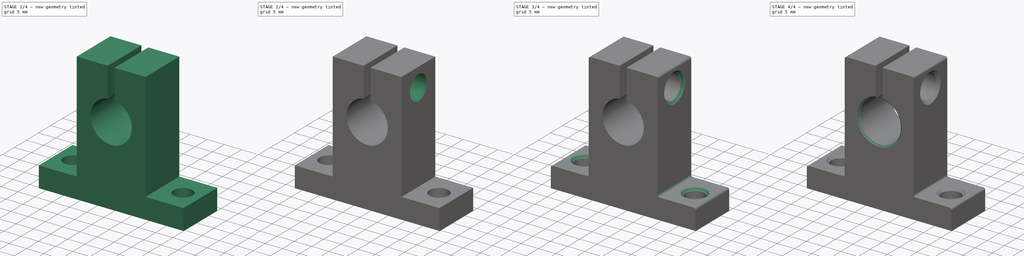
[diagram: build sequence overview — one tinted view per stage of 4, left to right]
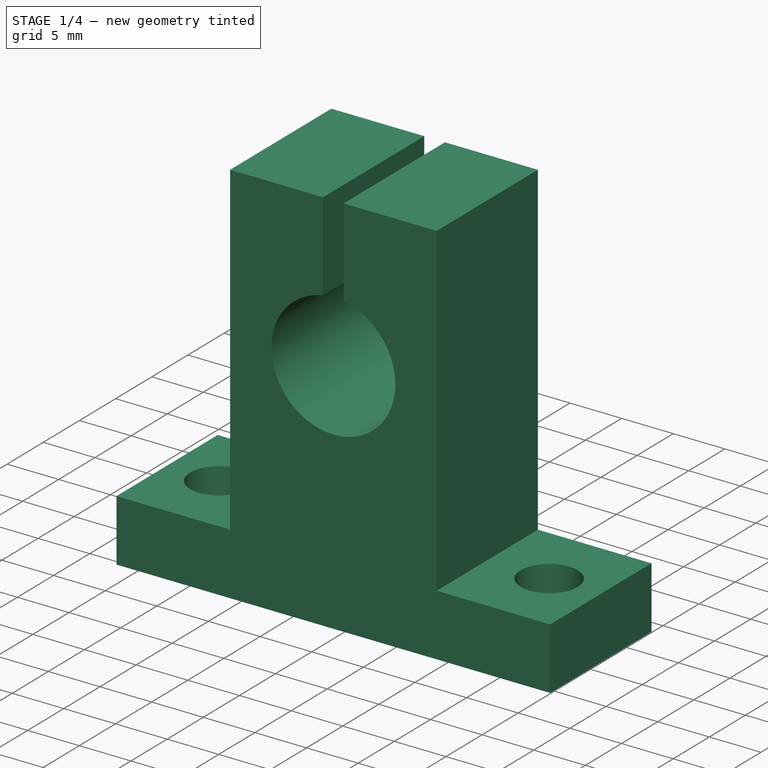
[diagram: stage 1 of 4 — iso view after this stage's code; geometry added in this stage tinted green]
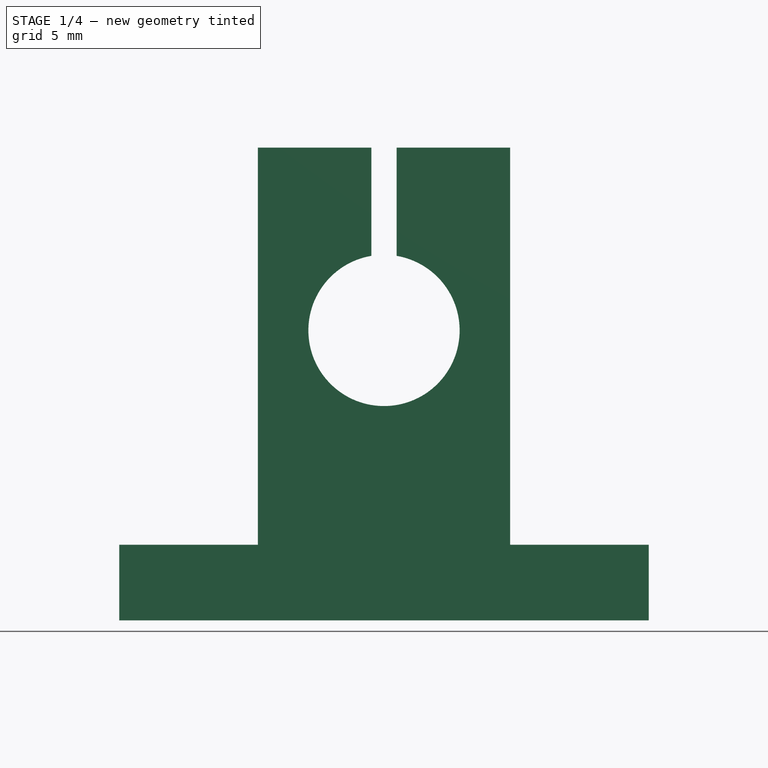
[diagram: stage 1 of 4 — front view after this stage's code; geometry added in this stage tinted green]
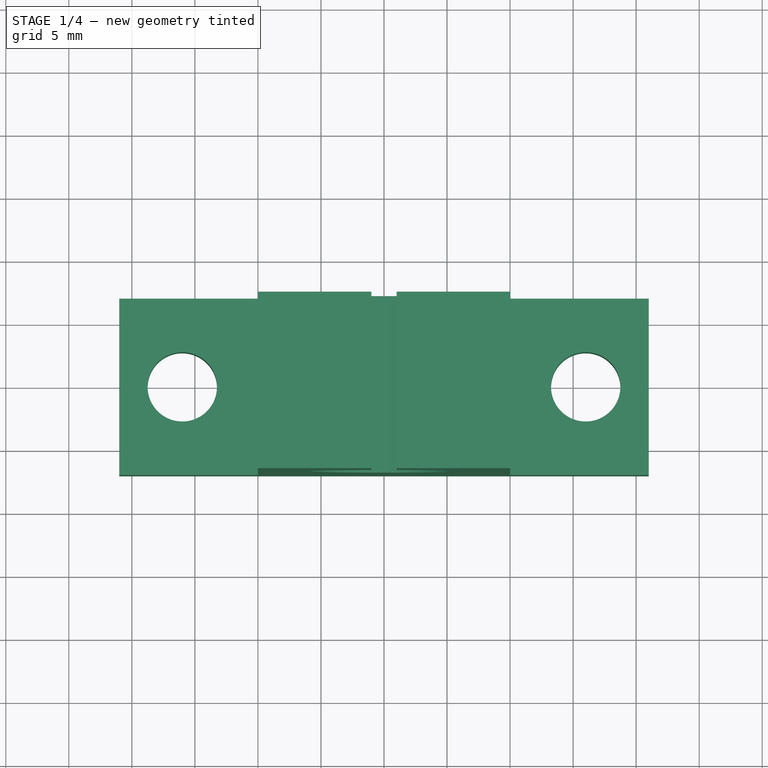
[diagram: stage 1 of 4 — top view after this stage's code; geometry added in this stage tinted green]
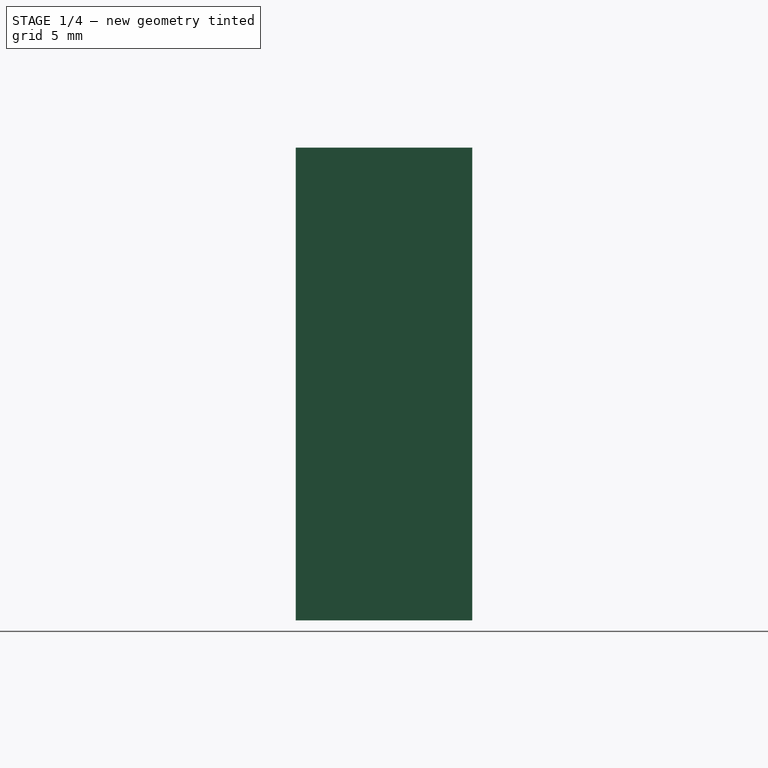
[diagram: stage 1 of 4 — right view after this stage's code; geometry added in this stage tinted green]
FCSTD DOCUMENT  (FreeCAD 0.15R4671 (Git))
Label: sk12a
License: All rights reserved
LicenseURL: http://en.wikipedia.org/wiki/All_rights_reserved
objects: Sketcher::SketchObject×4, PartDesign::Chamfer×4, PartDesign::Pocket×3, PartDesign::Pad×1, PartDesign::Fillet×1
note: 17 computed .brp shape members not serialized (recipe doc carries the construction recipe); baked Part::Feature solids carry a one-line shape summary decoded from their .brp

FEATURE [Sketcher::SketchObject] Sketch  label="body-sketch"
  Placement = pos=(0,0,0) rot=(1,0,0;1.5708rad)
  sketch-geometry (12):
    g0: LineSegment StartX=-21 StartY=0 StartZ=0 EndX=21 EndY=0 EndZ=0
    g1: LineSegment StartX=21 StartY=0 StartZ=0 EndX=21 EndY=6 EndZ=0
    g2: LineSegment StartX=21 StartY=6 StartZ=0 EndX=10 EndY=6 EndZ=0
    g3: LineSegment StartX=10 StartY=6 StartZ=0 EndX=10 EndY=37.5 EndZ=0
    g4: LineSegment StartX=10 StartY=37.5 StartZ=0 EndX=1 EndY=37.5 EndZ=0
    g5: LineSegment StartX=-10 StartY=37.5 StartZ=0 EndX=-10 EndY=6 EndZ=0
    g6: LineSegment StartX=-10 StartY=6 StartZ=0 EndX=-21 EndY=6 EndZ=0
    g7: LineSegment StartX=-21 StartY=6 StartZ=0 EndX=-21 EndY=0 EndZ=0
    g8: ArcOfCircle CenterX=0 CenterY=23 CenterZ=0 NormalX=0 NormalY=0 NormalZ=1 Radius=6 StartAngle=1.73824 EndAngle=7.68653
    g9: LineSegment StartX=-1 StartY=37.5 StartZ=0 EndX=-1 EndY=28.9161 EndZ=0
    g10: LineSegment StartX=1 StartY=37.5 StartZ=0 EndX=1 EndY=28.9161 EndZ=0
    g11: LineSegment StartX=-1 StartY=37.5 StartZ=0 EndX=-10 EndY=37.5 EndZ=0
  constraints (36):
    c: PointOnObject(g0,g-1)
    c: PointOnObject(g0,g-1)
    c: Coincident(g0,g1)
    c: Coincident(g1,g2)
    c: Horizontal(g2)
    c: Coincident(g2,g3)
    c: Vertical(g3)
    c: Coincident(g3,g4)
    c: Coincident(g11,g5)
    c: Coincident(g5,g6)
    c: Horizontal(g6)
    c: Coincident(g6,g7)
    c: Coincident(g7,g0)
    c: Symmetric(g11,g3,g-2)
    c: Symmetric(g0,g0,g-2)
    c: Vertical(g5)
    c: Vertical(g1)
    c: Vertical(g7)
    c: Distance(g0) = 42
    c: DistanceY(g-1,g3) = 37.5
    c: Distance(g1) = 6
    c: Equal(g1,g7)
    c: Radius(g8) = 6
    c: PointOnObject(g8,g-2)
    c: DistanceY(g-1,g8) = 23
    c: Vertical(g9)
    c: Vertical(g10)
    c: DistanceX(g-1,g10) = 1
    c: Coincident(g8,g9)
    c: Coincident(g8,g10)
    c: PointOnObject(g4,g10)
    c: Coincident(g11,g9)
    c: Tangent(g4,g11)
    c: DistanceX(g3,g5) = -20
    c: Coincident(g10,g4)
    c: Symmetric(g4,g9,g-2)
FEATURE [PartDesign::Pad] Pad  label="body"
  Length = 14
  Length2 = 100
  Midplane = true
  Placement = pos=(0,0,0) rot=(1,0,0;1.5708rad)
  Sketch = -> Sketch
  Type = 0
FEATURE [Sketcher::SketchObject] Sketch001  label="mounting-holes-sketch"
  ExternalGeometry = -> [Pad]
  Placement = pos=(0,0,0) rot=(1,0,0;3.14159rad)
  Support = -> Pad [Face5]
  sketch-geometry (2):
    g0: Circle CenterX=16 CenterY=0 CenterZ=0 NormalX=0 NormalY=0 NormalZ=1 Radius=2.75
    g1: Circle CenterX=-16 CenterY=0 CenterZ=0 NormalX=0 NormalY=0 NormalZ=1 Radius=2.75
  constraints (5):
    c: Radius(g0) = 2.75
    c: Symmetric(g0,g1,g-2)
    c: Equal(g1,g0)
    c: PointOnObject(g1,g-1)
    c: DistanceX(g0,g1) = -32
FEATURE [PartDesign::Pocket] Pocket  label="mounting-holes"
  Length = 6
  Placement = pos=(0,0,0) rot=(1,0,0;1.5708rad)
  Sketch = -> Sketch001
  Type = 1
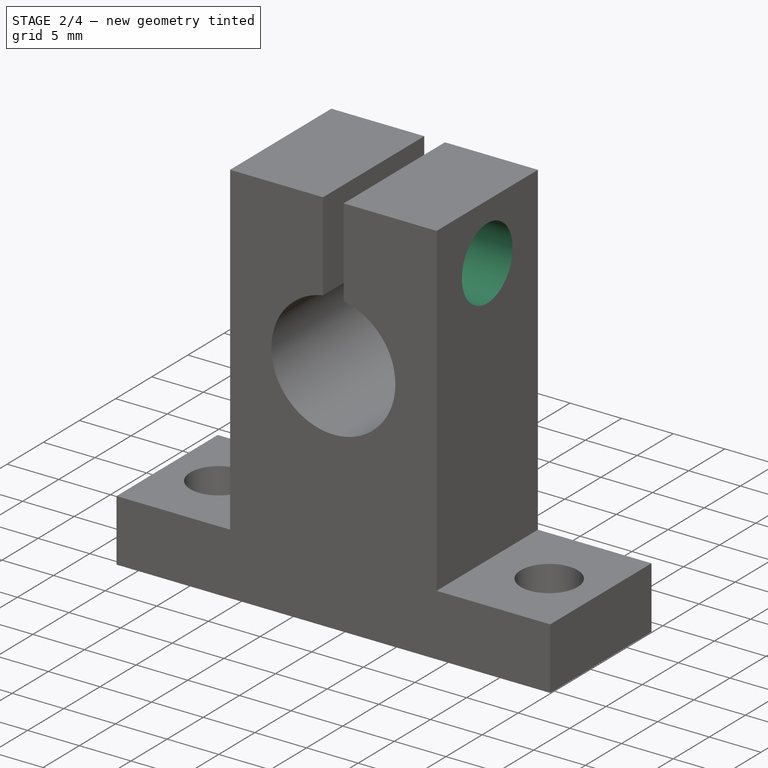
[diagram: stage 2 of 4 — iso view after this stage's code; geometry added in this stage tinted green]
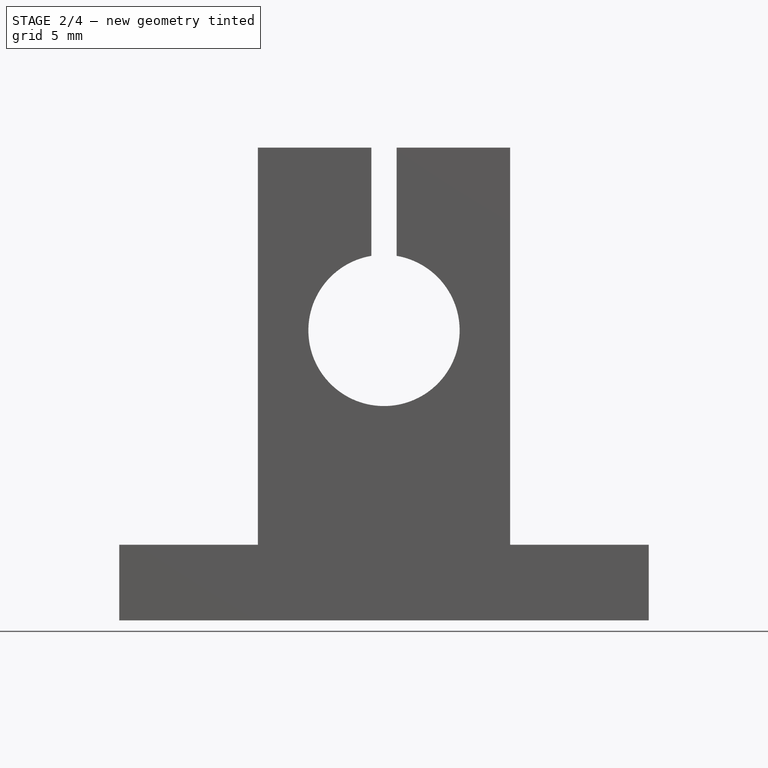
[diagram: stage 2 of 4 — front view after this stage's code; geometry added in this stage tinted green]
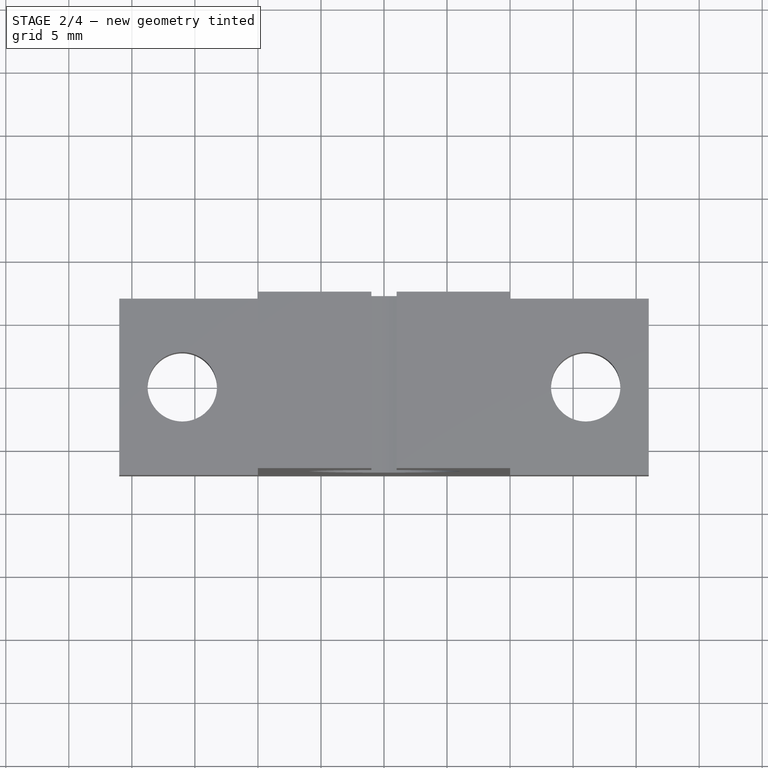
[diagram: stage 2 of 4 — top view after this stage's code; geometry added in this stage tinted green]
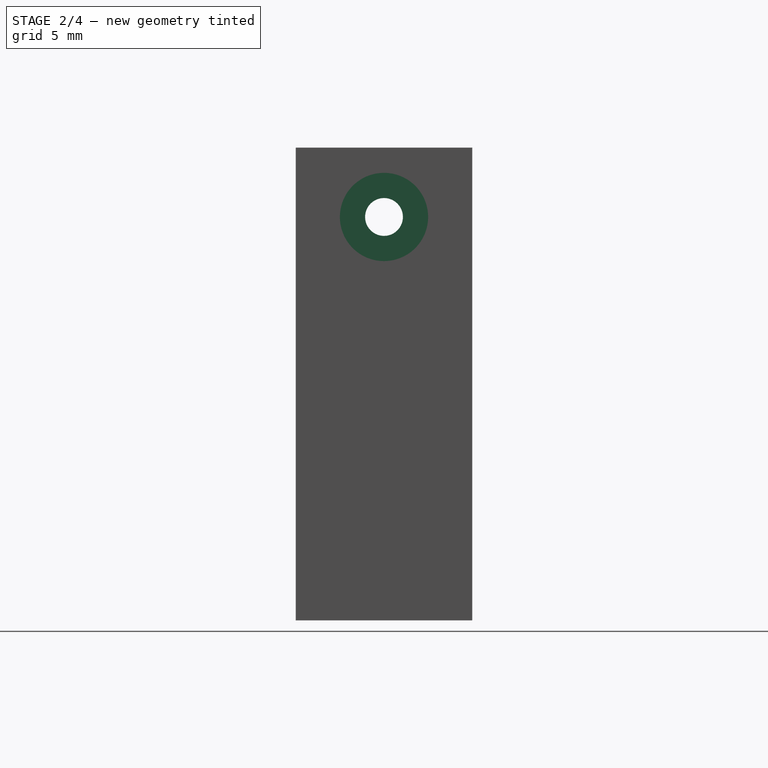
[diagram: stage 2 of 4 — right view after this stage's code; geometry added in this stage tinted green]
FEATURE [Sketcher::SketchObject] Sketch002  label="bolt-head-hole-sketch"
  ExternalGeometry = -> [Pocket]
  Placement = pos=(10,0,0) rot=(0.707107,0,0.707107;3.14159rad)
  Support = -> Pocket [Face12]
  sketch-geometry (1):
    g0: Circle CenterX=32 CenterY=0 CenterZ=0 NormalX=0 NormalY=0 NormalZ=1 Radius=3.5
  constraints (3):
    c: PointOnObject(g0,g-1)
    c: Radius(g0) = 3.5
    c: DistanceX(g-3,g0) = -5.5
FEATURE [PartDesign::Pocket] Pocket001  label="bolt-head-hole"
  Length = 5
  Placement = pos=(0,0,0) rot=(1,0,0;1.5708rad)
  Sketch = -> Sketch002
  Type = 0
FEATURE [Sketcher::SketchObject] Sketch003  label="bolt-hole-sketch"
  ExternalGeometry = -> [Pocket001]
  Placement = pos=(5,0,0) rot=(0.707107,0,0.707107;3.14159rad)
  Support = -> Pocket001 [Face18]
  sketch-geometry (1):
    g0: Circle CenterX=32 CenterY=0 CenterZ=0 NormalX=0 NormalY=0 NormalZ=1 Radius=1.5
  constraints (3):
    c: PointOnObject(g0,g-1)
    c: DistanceX(g0,g-3) = 5.5
    c: Radius(g0) = 1.5
FEATURE [PartDesign::Pocket] Pocket002  label="bolt-hole"
  Length = 5
  Placement = pos=(0,0,0) rot=(1,0,0;1.5708rad)
  Sketch = -> Sketch003
  Type = 1
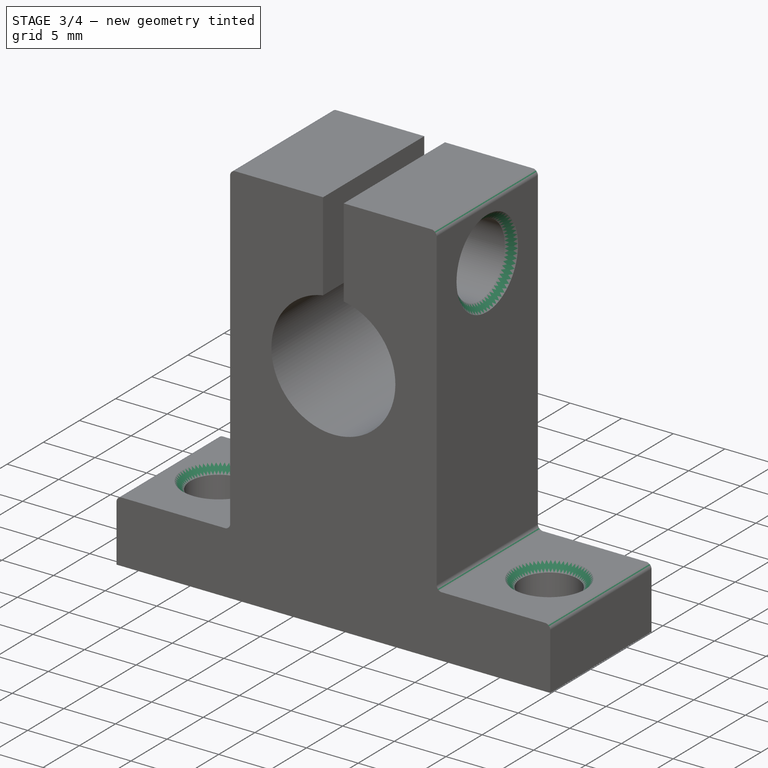
[diagram: stage 3 of 4 — iso view after this stage's code; geometry added in this stage tinted green]
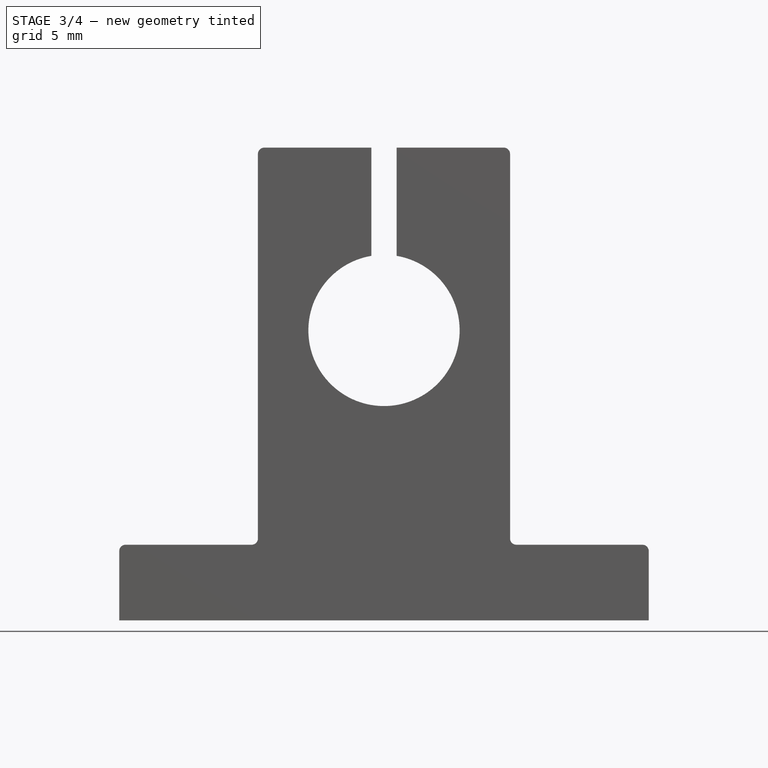
[diagram: stage 3 of 4 — front view after this stage's code; geometry added in this stage tinted green]
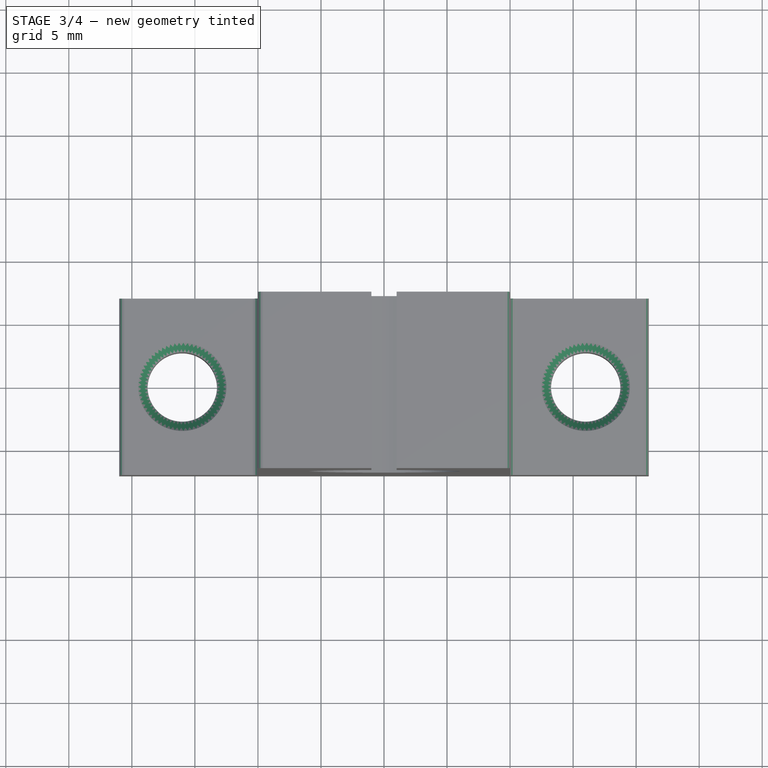
[diagram: stage 3 of 4 — top view after this stage's code; geometry added in this stage tinted green]
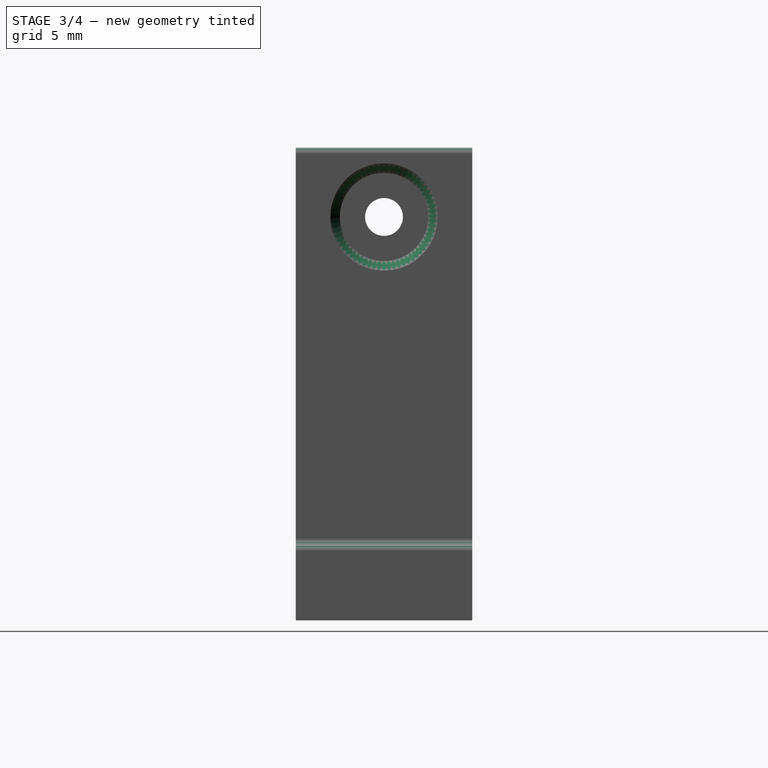
[diagram: stage 3 of 4 — right view after this stage's code; geometry added in this stage tinted green]
FEATURE [PartDesign::Fillet] Fillet  label="body-fillet"
  Base = -> Pocket002 [Edge39,Edge40,Edge42,Edge2,Edge11,Edge33]
  Placement = pos=(0,0,0) rot=(1,0,0;1.5708rad)
  Radius = 0.5
FEATURE [PartDesign::Chamfer] Chamfer  label="mounting-holes-chamfer"
  Base = -> Fillet [Edge62,Edge49]
  Placement = pos=(0,0,0) rot=(1,0,0;1.5708rad)
  Size = 0.75
FEATURE [PartDesign::Chamfer] Chamfer001  label="bolt-head-hole-chamfer"
  Base = -> Chamfer [Edge59]
  Placement = pos=(0,0,0) rot=(1,0,0;1.5708rad)
  Size = 0.75
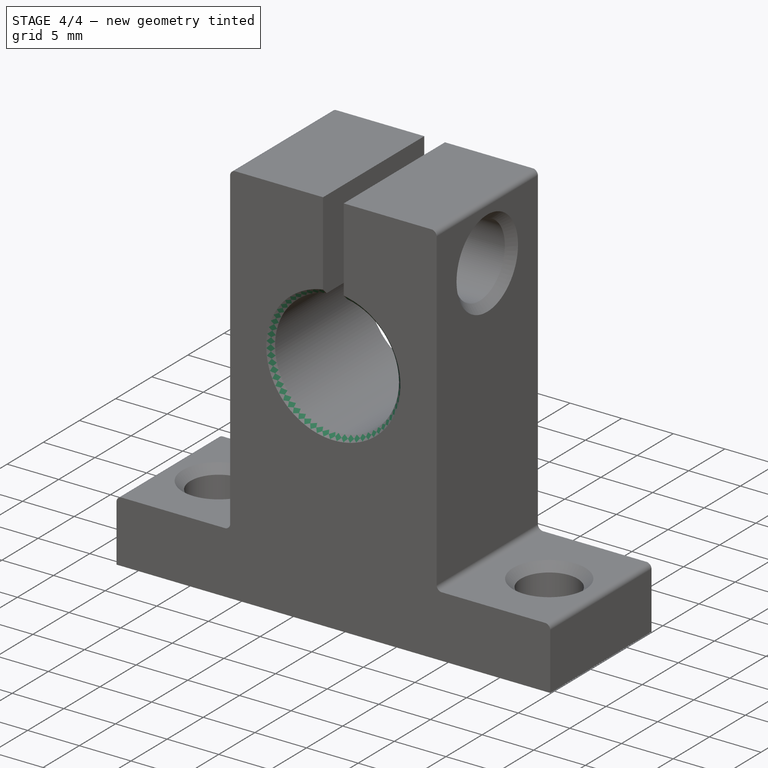
[diagram: stage 4 of 4 — iso view after this stage's code; geometry added in this stage tinted green]
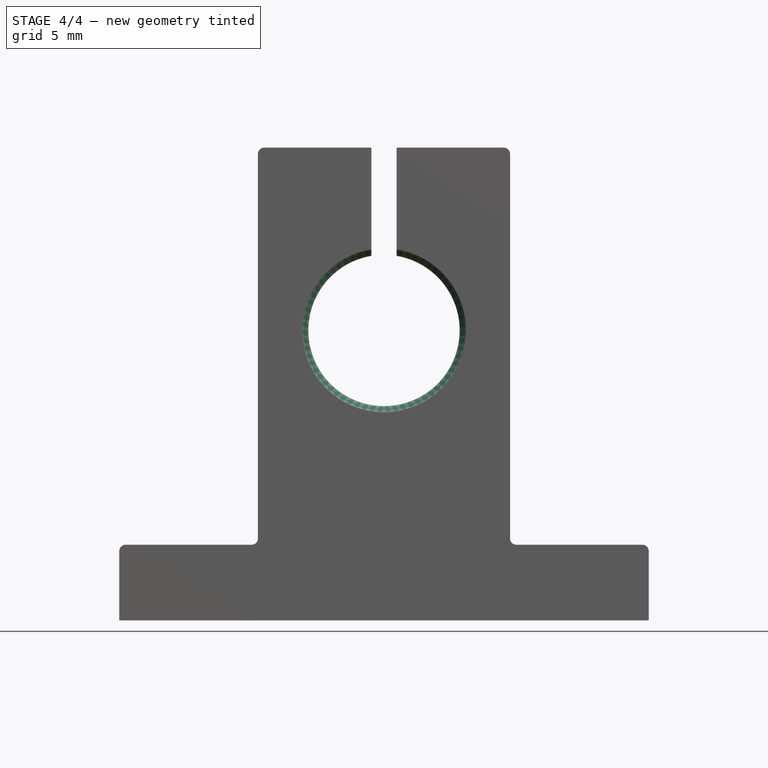
[diagram: stage 4 of 4 — front view after this stage's code; geometry added in this stage tinted green]
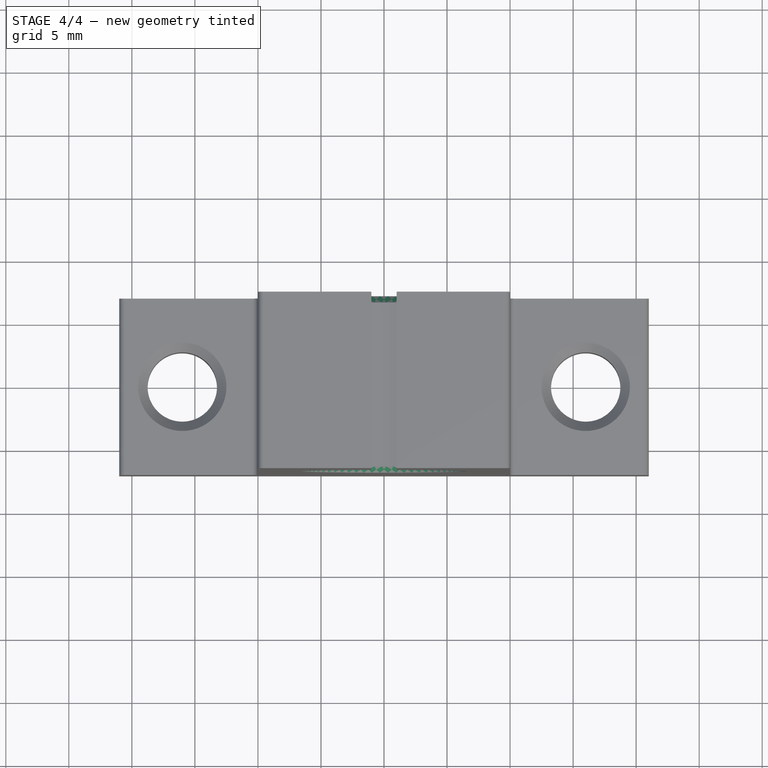
[diagram: stage 4 of 4 — top view after this stage's code; geometry added in this stage tinted green]
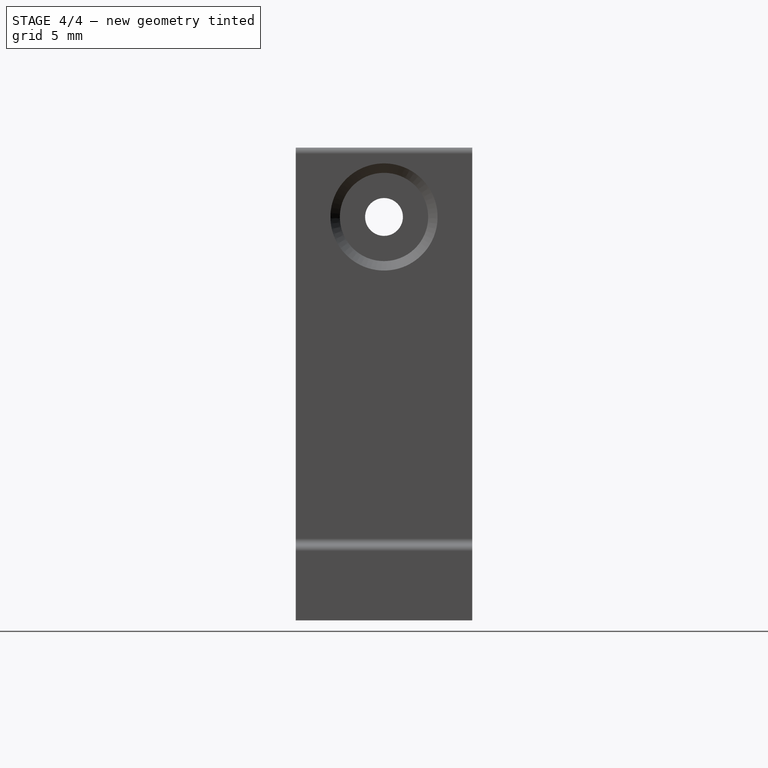
[diagram: stage 4 of 4 — right view after this stage's code; geometry added in this stage tinted green]
FEATURE [PartDesign::Chamfer] Chamfer002  label="bolt-hole-chamfer"
  Base = -> Chamfer001 [Edge52]
  Placement = pos=(0,0,0) rot=(1,0,0;1.5708rad)
  Size = 0.75
FEATURE [PartDesign::Chamfer] Chamfer003  label="sk12a"
  Base = -> Chamfer002 [Edge11,Edge31]
  Placement = pos=(0,0,0) rot=(1,0,0;1.5708rad)
  Size = 0.5
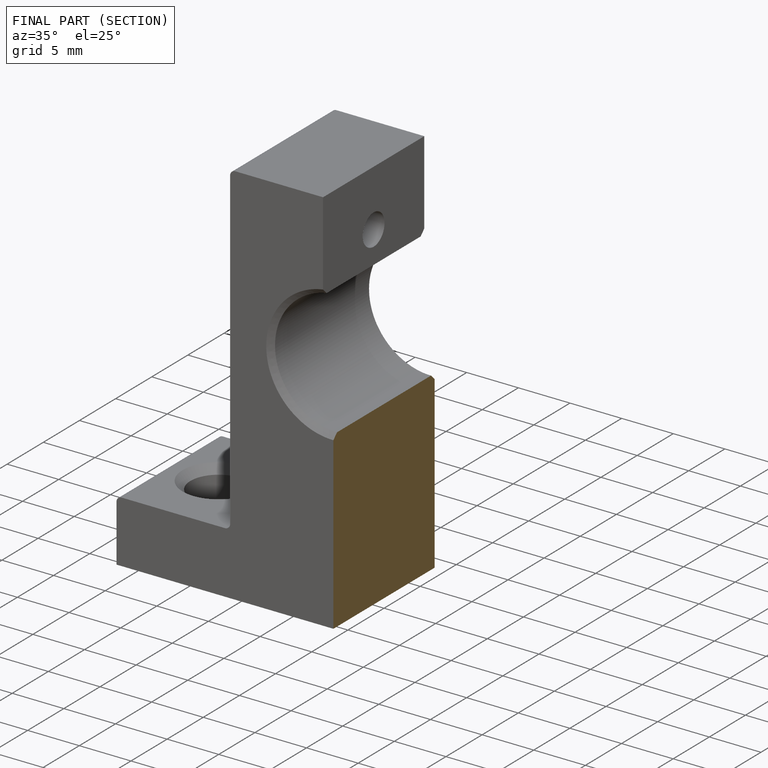
[diagram: finished part — half-section view (interior)]
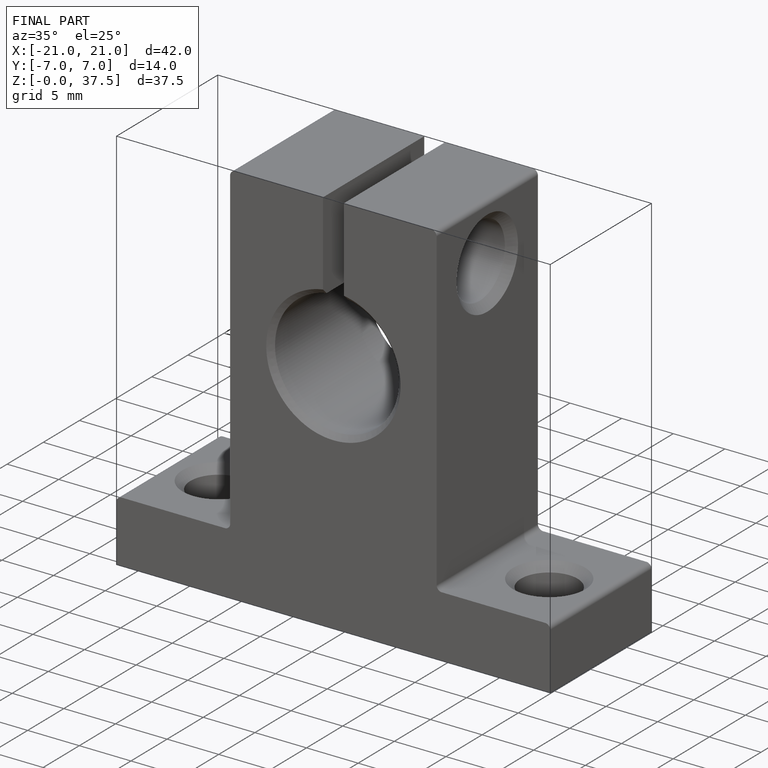
[diagram: finished part — iso view with bounding-box wireframe]
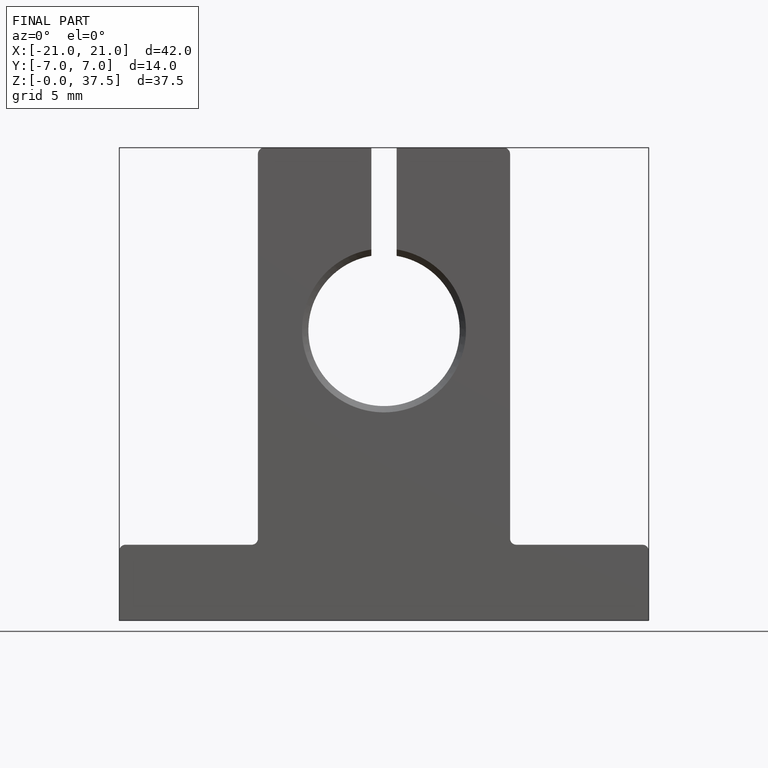
[diagram: finished part — front view with bounding-box wireframe]
